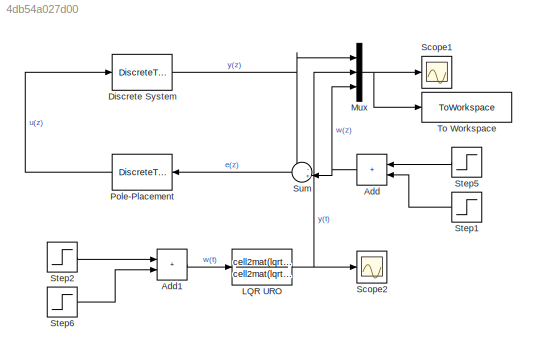
MODEL slx_4db54a027d00
KIND model
CONFIG AbsTol = auto
CONFIG EnableMultiTasking = off
CONFIG FixedStep = auto
CONFIG MaxStep = auto
CONFIG MinStep = auto
CONFIG RelTol = 1e-3
CONFIG SampleTimeConstraint = Unconstrained
CONFIG SolverName = VariableStepAuto
CONFIG StartTime = 0.0
CONFIG StopTime = 20
BLOCK [Sum] Add
  IconShape = rectangular
  NameLocation = top
BLOCK [Sum] Add1
  IconShape = rectangular
BLOCK [DiscreteTransferFcn] Discrete System
  Denominator = dtflin.den
  InputPortMap = u0
  Numerator = dtflin.num
BLOCK [TransferFcn] LQR URO
  Denominator = cell2mat(lqrtflin.Denominator)
  Numerator = cell2mat(lqrtflin.Numerator)
BLOCK [Mux] Mux
  DisplayOption = bar
  Inputs = 3
BLOCK [DiscreteTransferFcn] Pole-Placement
  Denominator = PpReg.den
  InputPortMap = u0
  NameLocation = top
  Numerator = PpReg.num
BLOCK [Scope] Scope1
  Floating = off
  NumInputPorts = 1
  ScopeSpecificationString = Simulink.scopes.TimeScopeBlockCfg('CurrentConfiguration', extmgr.ConfigurationSet(extmgr.Configuration('Core','General UI',true),extmgr.Configuration('Core','Source UI',true),extmgr.Configuration('Sources','WiredSimulink',true,'DataLoggingVariableName','ScopeData1'),extmgr.Configuration('Visuals','Time Domain',true,'SerializedDisplays',{struct('MinYLimReal','-0.22188','MaxYLimReal','1.22198','YLab...<+1464ch>
BLOCK [Scope] Scope2
  Floating = off
  NumInputPorts = 1
  ScopeSpecificationString = Simulink.scopes.TimeScopeBlockCfg('CurrentConfiguration', extmgr.ConfigurationSet(extmgr.Configuration('Core','General UI',true),extmgr.Configuration('Core','Source UI',true),extmgr.Configuration('Sources','WiredSimulink',true,'DataLoggingVariableName','ScopeData2'),extmgr.Configuration('Visuals','Time Domain',true,'SerializedDisplays',{struct('MinYLimReal','-0.12495','MaxYLimReal','1.12457','YLab...<+1461ch>
BLOCK [Step] Step1
  NameLocation = top
  SampleTime = 0
BLOCK [Step] Step2
  SampleTime = 0
BLOCK [Step] Step5
  After = -1
  NameLocation = top
  SampleTime = 0
  Time = dirsorder(1)
BLOCK [Step] Step6
  After = -1
  SampleTime = 0
  Time = dirsorder(1)
BLOCK [Sum] Sum
  Inputs = -+|
  NameLocation = top
BLOCK [ToWorkspace] To Workspace
  FixptAsFi = on
  MaxDataPoints = inf
  SampleTime = -1
  SaveFormat = Timeseries
  VariableName = simout
LINE Add1:1 -> LQR URO:1
NET Add:1 -> Mux:3, Sum:2
NET Discrete System:1 -> Mux:1, Sum:1
NET LQR URO:1 -> Mux:2, Scope2:1
NET Mux:1 -> Scope1:1, To Workspace:1
LINE Pole-Placement:1 -> Discrete System:1
LINE Step1:1 -> Add:2
LINE Step2:1 -> Add1:1
LINE Step5:1 -> Add:1
LINE Step6:1 -> Add1:2
LINE Sum:1 -> Pole-Placement:1
note: NET lines group one-source signal fan-out (src -> all destinations, sorted); 1:1 wires keep LINE
